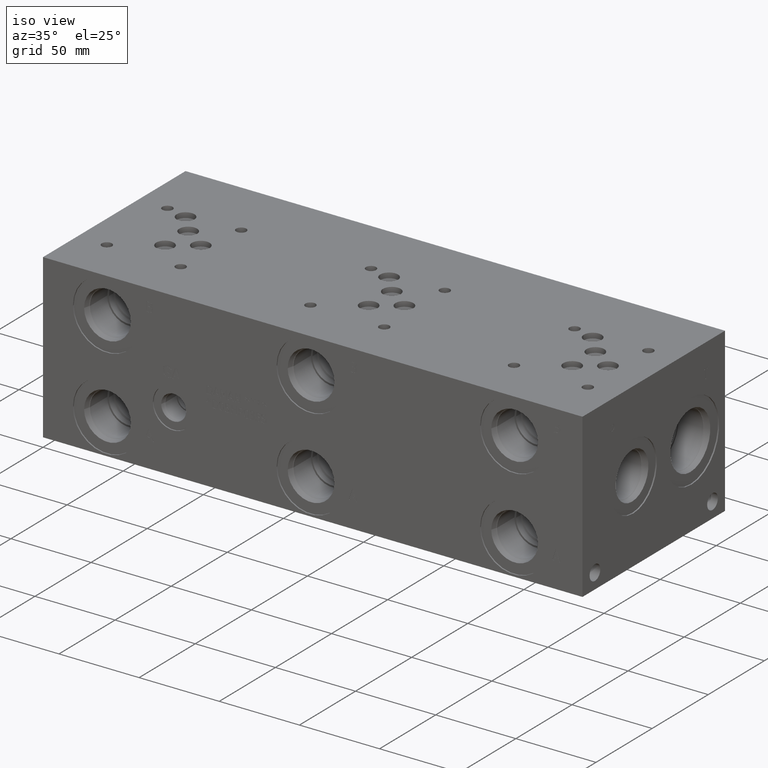
[diagram: clean part render]
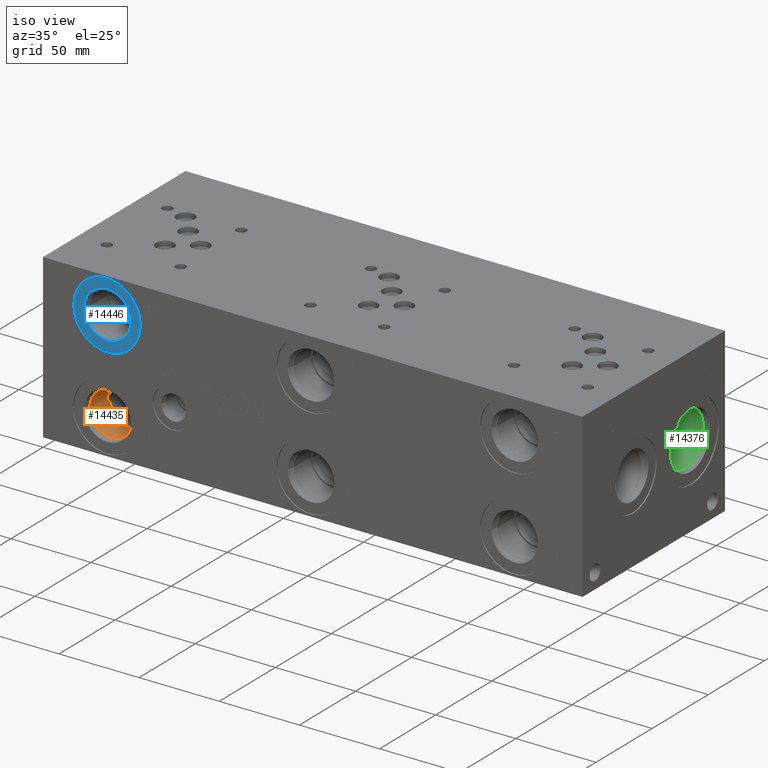
[diagram: same view with three faces highlighted in distinct colors, each labeled with its STEP entity id]
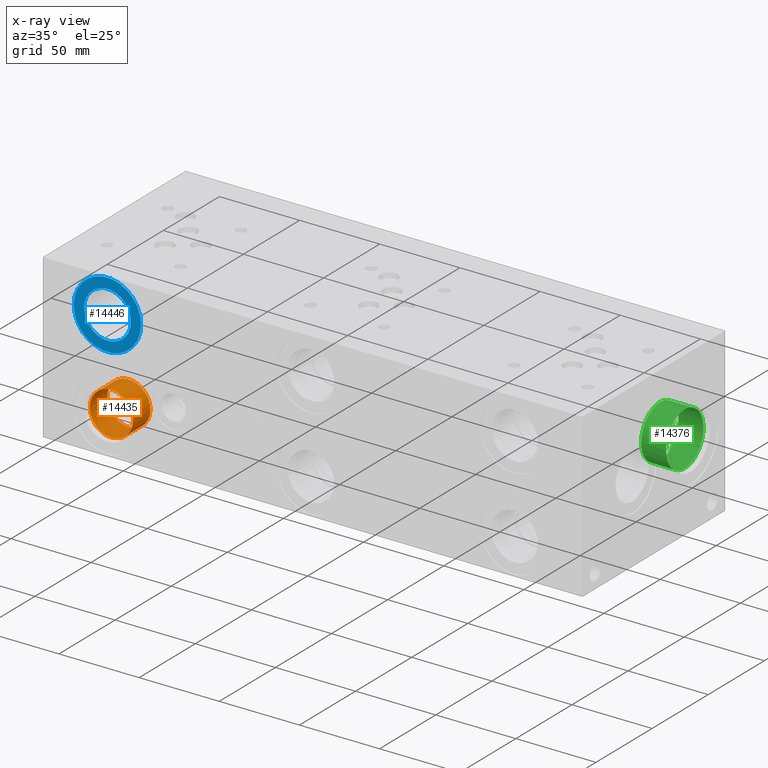
[diagram: x-ray of the same camera — body ghosted, the three highlighted faces saturated]
A machine part, iso view with three faces highlighted in distinct colors.
The next image is the same camera in x-ray (body ghosted, the three faces saturated) — at least one of them is partly hidden behind the body in this view.
Their STEP definitions:

[orange] entity #14435 — the highlighted cylindrical surface (bore or boss wall) has radius 13.495 mm, axis along (0, -1, 0).
#136=CYLINDRICAL_SURFACE('',#15226,13.495);
#532=CIRCLE('',#15160,13.495);
#569=CIRCLE('',#15223,13.495);
#570=CIRCLE('',#15224,13.495);
#1876=FACE_OUTER_BOUND('',#2714,.T.);
#2714=EDGE_LOOP('',(#12328,#12329,#12330,#12331,#12332));
#4058=LINE('',#24641,#5340);
#5340=VECTOR('',#18046,13.495);
#6579=VERTEX_POINT('',#24505);
#6622=VERTEX_POINT('',#24634);
#6623=VERTEX_POINT('',#24635);
#8522=EDGE_CURVE('',#6579,#6579,#532,.T.);
#8581=EDGE_CURVE('',#6622,#6623,#569,.T.);
#8582=EDGE_CURVE('',#6623,#6622,#570,.T.);
#8584=EDGE_CURVE('',#6579,#6623,#4058,.T.);
#12328=ORIENTED_EDGE('',*,*,#8522,.T.);
#12329=ORIENTED_EDGE('',*,*,#8584,.T.);
#12330=ORIENTED_EDGE('',*,*,#8581,.F.);
#12331=ORIENTED_EDGE('',*,*,#8582,.F.);
#12332=ORIENTED_EDGE('',*,*,#8584,.F.);
#14435=ADVANCED_FACE('',(#1876),#136,.F.);
#15160=AXIS2_PLACEMENT_3D('',#24507,#17890,#17891);
#15223=AXIS2_PLACEMENT_3D('',#24636,#18038,#18039);
#15224=AXIS2_PLACEMENT_3D('',#24637,#18040,#18041);
#15226=AXIS2_PLACEMENT_3D('',#24640,#18044,#18045);
#17890=DIRECTION('center_axis',(0.,-1.,0.));
#17891=DIRECTION('ref_axis',(1.,0.,0.));
#18038=DIRECTION('center_axis',(0.,-1.,0.));
#18039=DIRECTION('ref_axis',(1.,0.,0.));
#18040=DIRECTION('center_axis',(0.,-1.,0.));
#18041=DIRECTION('ref_axis',(1.,0.,0.));
#18044=DIRECTION('center_axis',(0.,-1.,0.));
#18045=DIRECTION('ref_axis',(1.,0.,0.));
#18046=DIRECTION('',(0.,1.,0.));
#24505=CARTESIAN_POINT('',(26.1798,4.285,22.225));
#24507=CARTESIAN_POINT('Origin',(39.6748,4.285,22.225));
#24634=CARTESIAN_POINT('',(53.1698,19.8374,22.225));
#24635=CARTESIAN_POINT('',(26.1798,19.8374,22.225));
#24636=CARTESIAN_POINT('Origin',(39.6748,19.8374,22.225));
#24637=CARTESIAN_POINT('Origin',(39.6748,19.8374,22.225));
#24640=CARTESIAN_POINT('Origin',(39.6748,9.9187,22.225));
#24641=CARTESIAN_POINT('',(26.1798,9.9187,22.225));

[blue] entity #14446 — the highlighted planar face has unit normal (0, 1, 0).
#582=CIRCLE('',#15247,21.0185);
#583=CIRCLE('',#15248,21.0185);
#584=CIRCLE('',#15250,14.5923);
#585=CIRCLE('',#15251,14.5923);
#1189=FACE_BOUND('',#2728,.T.);
#1887=FACE_OUTER_BOUND('',#2727,.T.);
#2727=EDGE_LOOP('',(#12380,#12381));
#2728=EDGE_LOOP('',(#12382,#12383));
#6635=VERTEX_POINT('',#24679);
#6636=VERTEX_POINT('',#24681);
#6637=VERTEX_POINT('',#24685);
#6638=VERTEX_POINT('',#24686);
#8603=EDGE_CURVE('',#6635,#6636,#582,.T.);
#8604=EDGE_CURVE('',#6636,#6635,#583,.T.);
#8605=EDGE_CURVE('',#6637,#6638,#584,.T.);
#8606=EDGE_CURVE('',#6638,#6637,#585,.T.);
#12380=ORIENTED_EDGE('',*,*,#8604,.F.);
#12381=ORIENTED_EDGE('',*,*,#8603,.F.);
#12382=ORIENTED_EDGE('',*,*,#8605,.T.);
#12383=ORIENTED_EDGE('',*,*,#8606,.T.);
#13247=PLANE('',#15249);
#14446=ADVANCED_FACE('',(#1887,#1189),#13247,.F.);
#15247=AXIS2_PLACEMENT_3D('',#24682,#18095,#18096);
#15248=AXIS2_PLACEMENT_3D('',#24683,#18097,#18098);
#15249=AXIS2_PLACEMENT_3D('',#24684,#18099,#18100);
#15250=AXIS2_PLACEMENT_3D('',#24687,#18101,#18102);
#15251=AXIS2_PLACEMENT_3D('',#24688,#18103,#18104);
#18095=DIRECTION('center_axis',(0.,1.,0.));
#18096=DIRECTION('ref_axis',(1.,0.,0.));
#18097=DIRECTION('center_axis',(0.,1.,0.));
#18098=DIRECTION('ref_axis',(1.,0.,0.));
#18099=DIRECTION('center_axis',(0.,1.,0.));
#18100=DIRECTION('ref_axis',(0.,0.,1.));
#18101=DIRECTION('center_axis',(0.,1.,0.));
#18102=DIRECTION('ref_axis',(1.,0.,0.));
#18103=DIRECTION('center_axis',(0.,1.,0.));
#18104=DIRECTION('ref_axis',(1.,0.,0.));
#24679=CARTESIAN_POINT('',(18.6563,0.7874,79.375));
#24681=CARTESIAN_POINT('',(60.6933,0.7874,79.375));
#24682=CARTESIAN_POINT('Origin',(39.6748,0.7874,79.375));
#24683=CARTESIAN_POINT('Origin',(39.6748,0.7874,79.375));
#24684=CARTESIAN_POINT('Origin',(54.2671,0.7874,79.375));
#24685=CARTESIAN_POINT('',(54.2671,0.7874,79.375));
#24686=CARTESIAN_POINT('',(25.0825,0.787399999999999,79.375));
#24687=CARTESIAN_POINT('Origin',(39.6748,0.7874,79.375));
#24688=CARTESIAN_POINT('Origin',(39.6748,0.7874,79.375));

[green] entity #14376 — the highlighted cylindrical surface (bore or boss wall) has radius 16.67 mm, axis along (1, 0, 0).
#109=CYLINDRICAL_SURFACE('',#15073,16.67);
#475=CIRCLE('',#15070,16.67);
#476=CIRCLE('',#15071,16.67);
#478=CIRCLE('',#15074,16.67);
#479=CIRCLE('',#15075,16.67);
#1817=FACE_OUTER_BOUND('',#2645,.T.);
#2645=EDGE_LOOP('',(#12036,#12037,#12038,#12039,#12040,#12041));
#4009=LINE('',#24341,#5291);
#5291=VECTOR('',#17693,16.67);
#6521=VERTEX_POINT('',#24331);
#6522=VERTEX_POINT('',#24332);
#6524=VERTEX_POINT('',#24338);
#6525=VERTEX_POINT('',#24339);
#8438=EDGE_CURVE('',#6521,#6522,#475,.T.);
#8439=EDGE_CURVE('',#6522,#6521,#476,.T.);
#8441=EDGE_CURVE('',#6524,#6525,#478,.T.);
#8442=EDGE_CURVE('',#6524,#6522,#4009,.T.);
#8443=EDGE_CURVE('',#6525,#6524,#479,.T.);
#12036=ORIENTED_EDGE('',*,*,#8441,.F.);
#12037=ORIENTED_EDGE('',*,*,#8442,.T.);
#12038=ORIENTED_EDGE('',*,*,#8438,.F.);
#12039=ORIENTED_EDGE('',*,*,#8439,.F.);
#12040=ORIENTED_EDGE('',*,*,#8442,.F.);
#12041=ORIENTED_EDGE('',*,*,#8443,.F.);
#14376=ADVANCED_FACE('',(#1817),#109,.F.);
#15070=AXIS2_PLACEMENT_3D('',#24333,#17683,#17684);
#15071=AXIS2_PLACEMENT_3D('',#24334,#17685,#17686);
#15073=AXIS2_PLACEMENT_3D('',#24337,#17689,#17690);
#15074=AXIS2_PLACEMENT_3D('',#24340,#17691,#17692);
#15075=AXIS2_PLACEMENT_3D('',#24342,#17694,#17695);
#17683=DIRECTION('center_axis',(1.,0.,0.));
#17684=DIRECTION('ref_axis',(0.,1.,0.));
#17685=DIRECTION('center_axis',(1.,0.,0.));
#17686=DIRECTION('ref_axis',(0.,1.,0.));
#17689=DIRECTION('center_axis',(1.,0.,0.));
#17690=DIRECTION('ref_axis',(0.,1.,0.));
#17691=DIRECTION('center_axis',(-1.,0.,0.));
#17692=DIRECTION('ref_axis',(0.,1.,0.));
#17693=DIRECTION('',(-1.,0.,0.));
#17694=DIRECTION('center_axis',(-1.,0.,0.));
#17695=DIRECTION('ref_axis',(0.,1.,0.));
#24331=CARTESIAN_POINT('',(316.7126,113.9266,50.8));
#24332=CARTESIAN_POINT('',(316.7126,80.5866,50.8));
#24333=CARTESIAN_POINT('Origin',(316.7126,97.2566,50.8));
#24334=CARTESIAN_POINT('Origin',(316.7126,97.2566,50.8));
#24337=CARTESIAN_POINT('Origin',(326.6313,97.2566,50.8));
#24338=CARTESIAN_POINT('',(332.2777,80.5866,50.8));
#24339=CARTESIAN_POINT('',(332.2777,97.2566,67.47));
#24340=CARTESIAN_POINT('Origin',(332.2777,97.2566,50.8));
#24341=CARTESIAN_POINT('',(326.6313,80.5866,50.8));
#24342=CARTESIAN_POINT('Origin',(332.2777,97.2566,50.8));